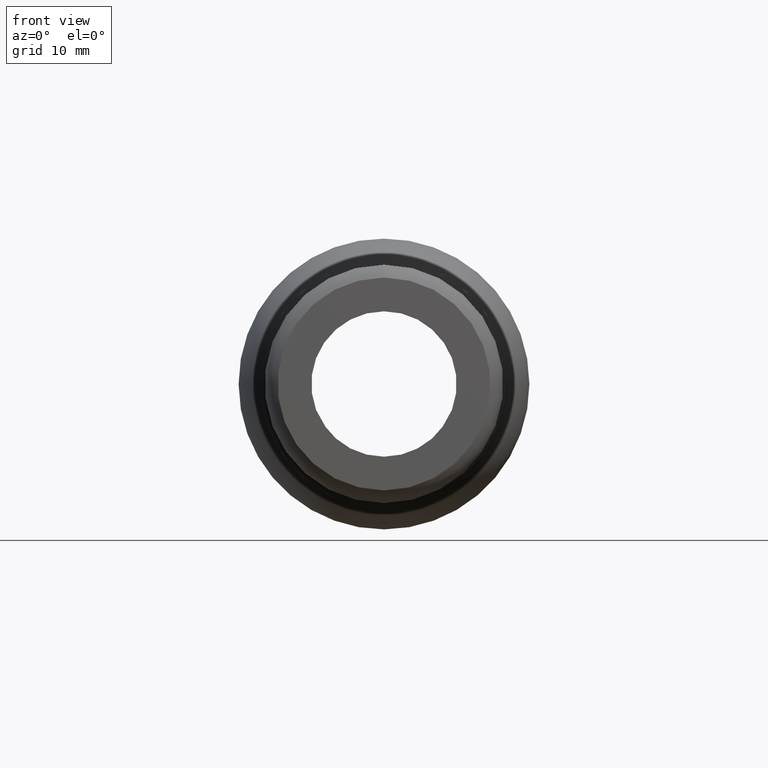
[diagram: clean part render]
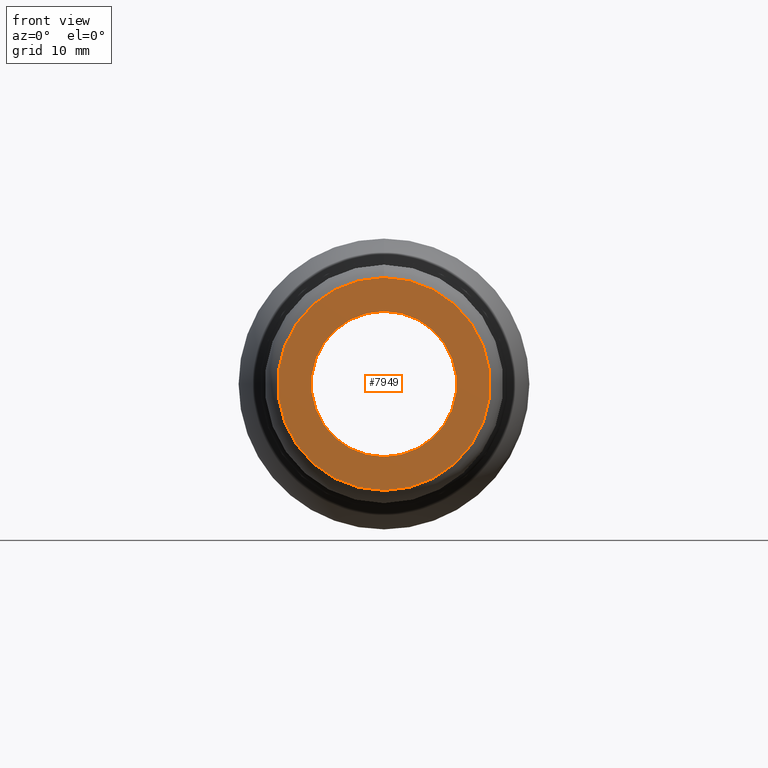
[diagram: same view with one face highlighted and labeled with its STEP entity id]
A machine part, front view. The second image highlights one B-rep face of the part: STEP entity #7949.
In plain terms, the highlighted planar face has unit normal (0, 1, 0).
Its self-contained STEP definition (entity closure, byte-faithful):
#144 = CARTESIAN_POINT ( 'NONE',  ( 0.000000000000000000, -26.00000000000000000, 0.000000000000000000 ) ) ;
#247 = CARTESIAN_POINT ( 'NONE',  ( 0.000000000000000000, -26.00000000000000000, 6.250000000000006217 ) ) ;
#333 = ORIENTED_EDGE ( 'NONE', *, *, #6996, .F. ) ;
#921 = CARTESIAN_POINT ( 'NONE',  ( 0.000000000000000000, -25.99999999999998579, 0.000000000000000000 ) ) ;
#1436 = DIRECTION ( 'NONE',  ( 0.000000000000000000, 0.000000000000000000, 1.000000000000000000 ) ) ;
#1811 = FACE_BOUND ( 'NONE', #12108, .T. ) ;
#2088 = CIRCLE ( 'NONE', #8176, 6.250000000000006217 ) ;
#2205 = EDGE_CURVE ( 'NONE', #6654, #5705, #2088, .T. ) ;
#2878 = ORIENTED_EDGE ( 'NONE', *, *, #5759, .F. ) ;
#4097 = EDGE_CURVE ( 'NONE', #5705, #6654, #12456, .T. ) ;
#4136 = CARTESIAN_POINT ( 'NONE',  ( 0.000000000000000000, -26.00000000000000000, 0.000000000000000000 ) ) ;
#4238 = DIRECTION ( 'NONE',  ( -0.000000000000000000, 1.000000000000000000, -0.000000000000000000 ) ) ;
#4779 = FACE_OUTER_BOUND ( 'NONE', #12817, .T. ) ;
#5135 = CARTESIAN_POINT ( 'NONE',  ( 1.120551821219828341E-15, -25.99999999999998579, -9.150000000000000355 ) ) ;
#5251 = DIRECTION ( 'NONE',  ( 0.000000000000000000, 0.000000000000000000, 1.000000000000000000 ) ) ;
#5306 = DIRECTION ( 'NONE',  ( 0.000000000000000000, 0.000000000000000000, 1.000000000000000000 ) ) ;
#5372 = VERTEX_POINT ( 'NONE', #5135 ) ;
#5429 = DIRECTION ( 'NONE',  ( -0.000000000000000000, 1.000000000000000000, -0.000000000000000000 ) ) ;
#5634 = AXIS2_PLACEMENT_3D ( 'NONE', #13124, #4238, #5306 ) ;
#5705 = VERTEX_POINT ( 'NONE', #247 ) ;
#5707 = DIRECTION ( 'NONE',  ( 0.000000000000000000, 0.000000000000000000, 1.000000000000000000 ) ) ;
#5759 = EDGE_CURVE ( 'NONE', #6452, #5372, #11221, .T. ) ;
#5801 = AXIS2_PLACEMENT_3D ( 'NONE', #144, #9075, #5707 ) ;
#6452 = VERTEX_POINT ( 'NONE', #10121 ) ;
#6654 = VERTEX_POINT ( 'NONE', #14011 ) ;
#6735 = AXIS2_PLACEMENT_3D ( 'NONE', #14416, #11348, #1436 ) ;
#6996 = EDGE_CURVE ( 'NONE', #5372, #6452, #8083, .T. ) ;
#7833 = ORIENTED_EDGE ( 'NONE', *, *, #4097, .T. ) ;
#7949 = ADVANCED_FACE ( 'NONE', ( #4779, #1811 ), #13006, .F. ) ;
#8083 = CIRCLE ( 'NONE', #5634, 9.150000000000000355 ) ;
#8176 = AXIS2_PLACEMENT_3D ( 'NONE', #4136, #11870, #5251 ) ;
#9075 = DIRECTION ( 'NONE',  ( -0.000000000000000000, 1.000000000000000000, -0.000000000000000000 ) ) ;
#10121 = CARTESIAN_POINT ( 'NONE',  ( 0.000000000000000000, -25.99999999999998579, 9.150000000000000355 ) ) ;
#10733 = ORIENTED_EDGE ( 'NONE', *, *, #2205, .T. ) ;
#11167 = AXIS2_PLACEMENT_3D ( 'NONE', #921, #5429, #13144 ) ;
#11221 = CIRCLE ( 'NONE', #11167, 9.150000000000000355 ) ;
#11348 = DIRECTION ( 'NONE',  ( -0.000000000000000000, 1.000000000000000000, 0.000000000000000000 ) ) ;
#11870 = DIRECTION ( 'NONE',  ( -0.000000000000000000, 1.000000000000000000, -0.000000000000000000 ) ) ;
#12108 = EDGE_LOOP ( 'NONE', ( #7833, #10733 ) ) ;
#12456 = CIRCLE ( 'NONE', #5801, 6.250000000000006217 ) ;
#12817 = EDGE_LOOP ( 'NONE', ( #2878, #333 ) ) ;
#13006 = PLANE ( 'NONE',  #6735 ) ;
#13124 = CARTESIAN_POINT ( 'NONE',  ( 0.000000000000000000, -25.99999999999998579, 0.000000000000000000 ) ) ;
#13144 = DIRECTION ( 'NONE',  ( 0.000000000000000000, 0.000000000000000000, 1.000000000000000000 ) ) ;
#14011 = CARTESIAN_POINT ( 'NONE',  ( 7.654042494670965495E-16, -26.00000000000000000, -6.250000000000006217 ) ) ;
#14416 = CARTESIAN_POINT ( 'NONE',  ( 6.250000000000006217, -25.99999999999999289, 0.000000000000000000 ) ) ;